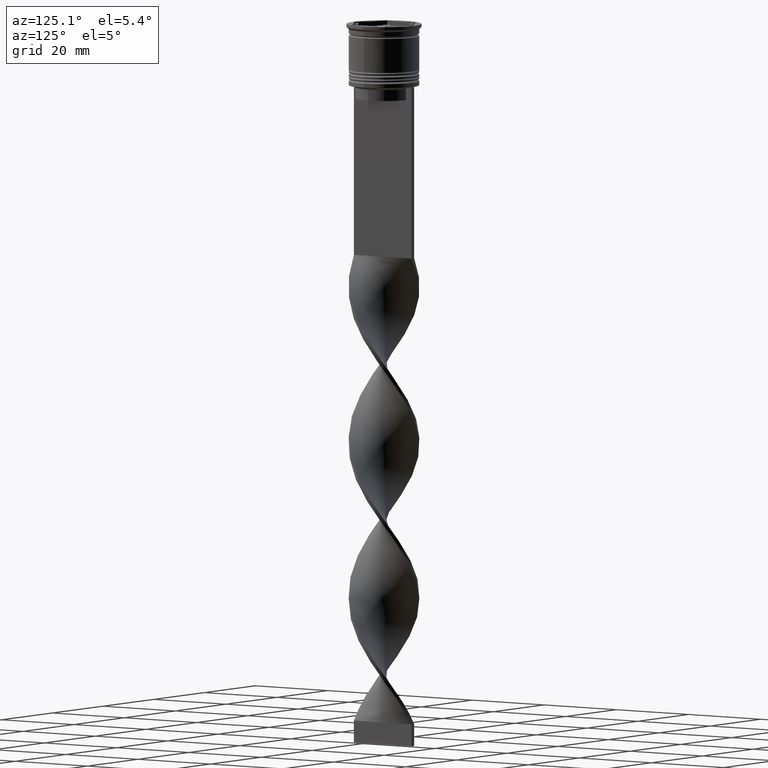
[diagram: clean part render]
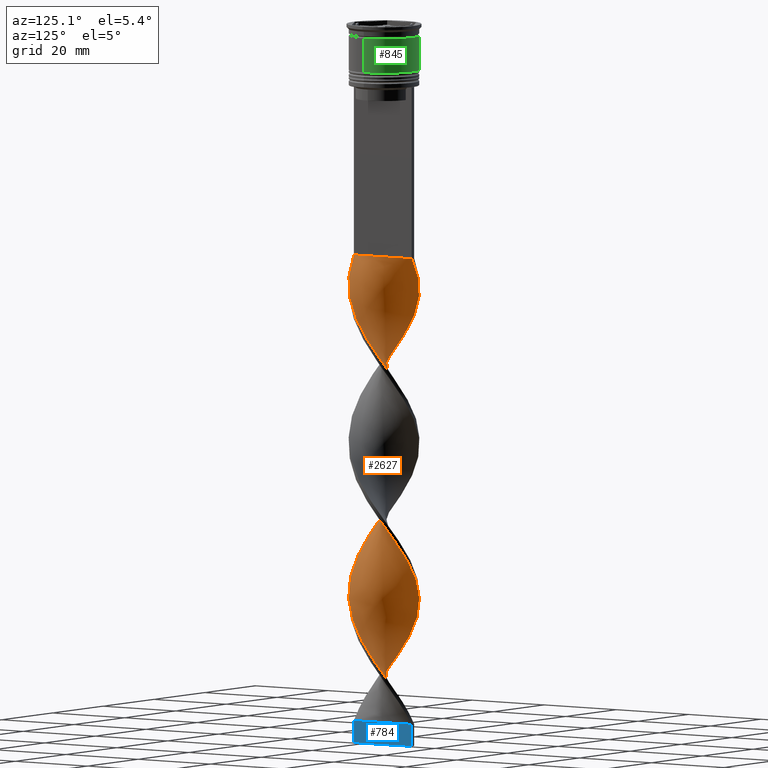
[diagram: same view with three faces highlighted in distinct colors, each labeled with its STEP entity id]
A machine part, auxiliary view with three faces highlighted in distinct colors.
Their STEP definitions:

[orange] entity #2627 — the highlighted face is a freeform B-spline surface patch.
#14 = CARTESIAN_POINT ( 'NONE',  ( -0.5000000000000011102, -7.999999999999996447, -88.33333333333332860 ) ) ;
#20 = CARTESIAN_POINT ( 'NONE',  ( 3.710665873427703154, -7.104995339602909965, -128.3777777777777942 ) ) ;
#39 = CARTESIAN_POINT ( 'NONE',  ( 8.008439394580017634, -0.3389667584570930092, -140.1555555555555657 ) ) ;
#52 = CARTESIAN_POINT ( 'NONE',  ( -1.174219726175170786, 7.929136651279321768, -126.0222222222222257 ) ) ;
#67 = CARTESIAN_POINT ( 'NONE',  ( -0.3408338821254111584, 8.052552117632835404, -124.8444444444444343 ) ) ;
#69 = CARTESIAN_POINT ( 'NONE',  ( 1.340833882125418208, 7.947447882367156602, -122.4888888888888800 ) ) ;
#93 = CARTESIAN_POINT ( 'NONE',  ( -3.586635261345267889, 7.217742780431601446, -129.5555555555555429 ) ) ;
#94 = CARTESIAN_POINT ( 'NONE',  ( -8.044066236508134793, -0.5027541397817568702, -106.0000000000000000 ) ) ;
#96 = CARTESIAN_POINT ( 'NONE',  ( 5.610593300639719949, -5.724617263609562912, -97.75555555555555998 ) ) ;
#98 = CARTESIAN_POINT ( 'NONE',  ( 3.710665873427703154, -7.104995339602909965, -128.3777777777777942 ) ) ;
#109 = CARTESIAN_POINT ( 'NONE',  ( -7.763755626116584097, 2.164223167868971398, -138.9777777777777885 ) ) ;
#110 = CARTESIAN_POINT ( 'NONE',  ( -7.144131640230917846, 3.731105258425341020, -136.6222222222222342 ) ) ;
#119 = CARTESIAN_POINT ( 'NONE',  ( -5.756150055891657402, 5.641498017056845171, -96.57777777777776862 ) ) ;
#126 = CARTESIAN_POINT ( 'NONE',  ( 2.152367326908981138, 7.721224960461560372, -121.3111111111111171 ) ) ;
#128 = CARTESIAN_POINT ( 'NONE',  ( 0.5000000000000001110, 7.999999999999996447, -123.6666666666666714 ) ) ;
#148 = CARTESIAN_POINT ( 'NONE',  ( 6.279723906998584404, -4.981472438132170666, -62.42222222222221717 ) ) ;
#161 = CARTESIAN_POINT ( 'NONE',  ( 5.610593300639729719, 5.724617263609562912, -149.5777777777777828 ) ) ;
#164 = CARTESIAN_POINT ( 'NONE',  ( -6.678203230275515878, -4.433012701892216079, -111.8888888888888999 ) ) ;
#170 = CARTESIAN_POINT ( 'NONE',  ( -3.710665873427702710, -7.104995339602902860, -154.2888888888888914 ) ) ;
#171 = CARTESIAN_POINT ( 'NONE',  ( -7.762960627548705084, 1.996607696852004565, -102.4666666666666686 ) ) ;
#183 = CARTESIAN_POINT ( 'NONE',  ( 6.212274820320101476, 5.134920145359098242, -148.4000000000000057 ) ) ;
#186 = CARTESIAN_POINT ( 'NONE',  ( 7.553108702445512357, -2.812527737008067241, -65.95555555555556282 ) ) ;
#202 = CARTESIAN_POINT ( 'NONE',  ( 6.678203230275513214, 4.433012701892219631, -76.55555555555555713 ) ) ;
#207 = CARTESIAN_POINT ( 'NONE',  ( -0.5000000000000004441, -2.666666666666663410, -159.0000000000000000 ) ) ;
#208 = CARTESIAN_POINT ( 'NONE',  ( 3.710665873427703154, -7.104995339602909965, -57.71111111111110858 ) ) ;
#210 = CARTESIAN_POINT ( 'NONE',  ( -0.4999999999999991673, 8.000000000000003553, -88.33333333333332860 ) ) ;
#228 = CARTESIAN_POINT ( 'NONE',  ( -5.610593300639721726, 5.724617263609561135, -62.42222222222221717 ) ) ;
#229 = CARTESIAN_POINT ( 'NONE',  ( 1.174219726175175671, 7.929136651279327097, -156.6444444444444457 ) ) ;
#232 = EDGE_LOOP ( 'NONE', ( #2827, #2107, #1892, #1599 ) ) ;
#256 = CARTESIAN_POINT ( 'NONE',  ( -7.553108702445506140, -2.812527737008062356, -75.37777777777777999 ) ) ;
#283 = CARTESIAN_POINT ( 'NONE',  ( -1.340833882125413545, -7.947447882367156602, -87.15555555555553724 ) ) ;
#306 = CARTESIAN_POINT ( 'NONE',  ( -3.710665873427702710, -7.104995339602902860, -83.62222222222222001 ) ) ;
#320 = CARTESIAN_POINT ( 'NONE',  ( -5.756150055891655626, -5.641498017056837178, -80.08888888888888857 ) ) ;
#326 = CARTESIAN_POINT ( 'NONE',  ( 0.5000000000000001110, -8.000000000000003553, -123.6666666666666714 ) ) ;
#343 = CARTESIAN_POINT ( 'NONE',  ( 6.212274820320095259, -5.134920145359096466, -98.93333333333332291 ) ) ;
#348 = CARTESIAN_POINT ( 'NONE',  ( -0.4999999999999991673, 8.000000000000003553, -159.0000000000000000 ) ) ;
#358 = CARTESIAN_POINT ( 'NONE',  ( 6.678203230275505220, -4.433012701892221408, -100.1111111111111143 ) ) ;
#371 = CARTESIAN_POINT ( 'NONE',  ( 7.762960627548699755, 1.996607696851999680, -109.5333333333333456 ) ) ;
#373 = CARTESIAN_POINT ( 'NONE',  ( -6.803297758105507853, -4.321446859207493496, -148.4000000000000057 ) ) ;
#378 = CARTESIAN_POINT ( 'NONE',  ( 2.152367326908978473, -7.721224960461570141, -126.0222222222222257 ) ) ;
#396 = CARTESIAN_POINT ( 'NONE',  ( -7.453943633173751415, 2.947664213147155543, -137.8000000000000114 ) ) ;
#398 = CARTESIAN_POINT ( 'NONE',  ( 6.803297758105508741, 4.321446859207492608, -113.0666666666666629 ) ) ;
#415 = CARTESIAN_POINT ( 'NONE',  ( -7.763755626116584985, 2.164223167868970954, -138.9777777777777885 ) ) ;
#427 = CARTESIAN_POINT ( 'NONE',  ( 5.008911780959356186, 6.314314381860030245, -80.08888888888888857 ) ) ;
#433 = CARTESIAN_POINT ( 'NONE',  ( -4.457430975162862019, -6.714988640649840690, -153.1111111111110858 ) ) ;
#439 = CARTESIAN_POINT ( 'NONE',  ( -7.144131640230925839, -3.731105258425339244, -110.7111111111110944 ) ) ;
#451 = CARTESIAN_POINT ( 'NONE',  ( -7.763755626116593866, -2.164223167868965625, -108.3555555555555543 ) ) ;
#457 = CARTESIAN_POINT ( 'NONE',  ( -5.756150055891655626, -5.641498017056837178, -150.7555555555555600 ) ) ;
#458 = CARTESIAN_POINT ( 'NONE',  ( -6.803297758105511406, 4.321446859207499713, -98.93333333333332291 ) ) ;
#469 = CARTESIAN_POINT ( 'NONE',  ( 8.008439394580017634, -0.3389667584570930092, -140.1555555555555657 ) ) ;
#471 = CARTESIAN_POINT ( 'NONE',  ( 7.903910931312363886, 1.333488653825363857, -71.84444444444444855 ) ) ;
#486 = CARTESIAN_POINT ( 'NONE',  ( 4.457430975162862907, -6.714988640649847795, -58.88888888888888573 ) ) ;
#489 = CARTESIAN_POINT ( 'NONE',  ( -7.553108702445507028, -2.812527737008061912, -146.0444444444443945 ) ) ;
#490 = CARTESIAN_POINT ( 'NONE',  ( 2.797120415785104619, 7.511731982678710118, -83.62222222222222001 ) ) ;
#507 = CARTESIAN_POINT ( 'NONE',  ( -5.106790515527258378, -6.178243328853339378, -81.26666666666666572 ) ) ;
#508 = CARTESIAN_POINT ( 'NONE',  ( 2.797120415785104619, 7.511731982678710118, -154.2888888888888914 ) ) ;
#533 = CARTESIAN_POINT ( 'NONE',  ( -0.3408338821254111584, 8.052552117632835404, -54.17777777777777715 ) ) ;
#542 = CARTESIAN_POINT ( 'NONE',  ( -5.610593300639721726, 5.724617263609561135, -62.42222222222221717 ) ) ;
#559 = CARTESIAN_POINT ( 'NONE',  ( 2.797120415785096625, -7.511731982678705677, -93.04444444444443718 ) ) ;
#564 = CARTESIAN_POINT ( 'NONE',  ( -4.297773521152309151, 6.766028581145814513, -60.06666666666666288 ) ) ;
#577 =( BOUNDED_CURVE ( )  B_SPLINE_CURVE ( 2, ( #3752, #3428, #2300, #1443, #2052, #3128, #1164, #2314, #542, #3459, #3182, #3718, #875, #2896, #3444, #1769, #2580, #1708, #2849, #256, #611, #2913, #3736, #320, #841, #596, #306, #2633, #2609, #1206, #14, #1421, #2559, #3145, #559, #1723, #990, #666, #96, #1528, #358, #1844, #3514, #3496, #3283, #2364, #2988, #1241, #708, #1583, #1865, #398, #1811, #3252, #931, #2706, #2422, #2650, #2954, #69, #128, #2090, #2970, #3573, #972, #683, #1565, #3233, #909, #3008, #650, #110, #2386, #415, #2726, #1296, #1276, #2668, #1825, #3535, #2142, #373, #955, #2068, #2109, #3209, #628, #1791, #1543, #2937, #2685 ),
 .UNSPECIFIED., .F., .T. ) 
 B_SPLINE_CURVE_WITH_KNOTS ( ( 3, 2, 2, 2, 2, 2, 2, 2, 2, 2, 2, 2, 2, 2, 2, 2, 2, 2, 2, 2, 2, 2, 2, 2, 2, 2, 2, 2, 2, 2, 2, 2, 2, 2, 2, 2, 2, 2, 2, 2, 2, 2, 2, 2, 2, 3 ),
 ( 0.000000000000000000, 0.01666666666666666644, 0.03333333333333333287, 0.05000000000000000971, 0.06666666666666666574, 0.08333333333333332871, 0.1000000000000000194, 0.1166666666666666546, 0.1333333333333333315, 0.1499999999999999944, 0.1666666666666666574, 0.1833333333333333204, 0.2000000000000000389, 0.2166666666666666741, 0.2333333333333333093, 0.2500000000000000000, 0.2666666666666666630, 0.2833333333333333259, 0.2999999999999999889, 0.3166666666666666519, 0.3333333333333333148, 0.3499999999999999223, 0.3666666666666666408, 0.3833333333333333592, 0.4000000000000000777, 0.4166666666666666852, 0.4333333333333333481, 0.4500000000000000111, 0.4666666666666666186, 0.4833333333333333370, 0.5000000000000000000, 0.5166666666666667185, 0.5333333333333333259, 0.5500000000000000444, 0.5666666666666666519, 0.5833333333333333703, 0.5999999999999999778, 0.6166666666666666963, 0.6333333333333333037, 0.6500000000000000222, 0.6666666666666666297, 0.6833333333333332371, 0.6999999999999998446, 0.7166666666666666741, 0.7333333333333332815, 0.7500000000000000000 ),
 .UNSPECIFIED. ) 
 CURVE ( )  GEOMETRIC_REPRESENTATION_ITEM ( )  RATIONAL_B_SPLINE_CURVE ( ( 1.000000000000000000, 0.9945218953682732899, 1.000000000000000000, 0.9945218953682732899, 1.000000000000000000, 0.9945218953682732899, 1.000000000000000000, 0.9945218953682732899, 1.000000000000000000, 0.9945218953682732899, 1.000000000000000000, 0.9945218953682732899, 1.000000000000000000, 0.9945218953682732899, 1.000000000000000000, 0.9945218953682732899, 1.000000000000000000, 0.9945218953682732899, 1.000000000000000000, 0.9945218953682732899, 1.000000000000000000, 0.9945218953682732899, 1.000000000000000000, 0.9945218953682732899, 1.000000000000000000, 0.9945218953682732899, 1.000000000000000000, 0.9945218953682732899, 1.000000000000000000, 0.9945218953682732899, 1.000000000000000000, 0.9945218953682732899, 1.000000000000000000, 0.9945218953682732899, 1.000000000000000000, 0.9945218953682732899, 1.000000000000000000, 0.9945218953682732899, 1.000000000000000000, 0.9945218953682732899, 1.000000000000000000, 0.9945218953682732899, 1.000000000000000000, 0.9945218953682732899, 1.000000000000000000, 0.9945218953682732899, 1.000000000000000000, 0.9945218953682732899, 1.000000000000000000, 0.9945218953682732899, 1.000000000000000000, 0.9945218953682732899, 1.000000000000000000, 0.9945218953682732899, 1.000000000000000000, 0.9945218953682732899, 1.000000000000000000, 0.9945218953682732899, 1.000000000000000000, 0.9945218953682732899, 1.000000000000000000, 0.9945218953682732899, 1.000000000000000000, 0.9945218953682732899, 1.000000000000000000, 0.9945218953682732899, 1.000000000000000000, 0.9945218953682732899, 1.000000000000000000, 0.9945218953682732899, 1.000000000000000000, 0.9945218953682732899, 1.000000000000000000, 0.9945218953682732899, 1.000000000000000000, 0.9945218953682732899, 1.000000000000000000, 0.9945218953682732899, 1.000000000000000000, 0.9945218953682732899, 1.000000000000000000, 0.9945218953682732899, 1.000000000000000000, 0.9945218953682732899, 1.000000000000000000, 0.9945218953682732899, 1.000000000000000000, 0.9945218953682732899, 1.000000000000000000, 0.9945218953682732899, 1.000000000000000000 ) ) 
 REPRESENTATION_ITEM ( '' )  );
#596 = CARTESIAN_POINT ( 'NONE',  ( -4.457430975162862019, -6.714988640649840690, -82.44444444444444287 ) ) ;
#600 = CARTESIAN_POINT ( 'NONE',  ( 5.756150055891658290, -5.641498017056844283, -131.9111111111111256 ) ) ;
#611 = CARTESIAN_POINT ( 'NONE',  ( -7.178203230275506996, -3.566987298107776816, -76.55555555555555713 ) ) ;
#615 = CARTESIAN_POINT ( 'NONE',  ( -2.007605570224935132, -7.805721184925815237, -120.1333333333333400 ) ) ;
#628 = CARTESIAN_POINT ( 'NONE',  ( -3.710665873427702710, -7.104995339602902860, -154.2888888888888914 ) ) ;
#648 = CARTESIAN_POINT ( 'NONE',  ( 1.340833882125418208, 7.947447882367156602, -122.4888888888888800 ) ) ;
#650 = CARTESIAN_POINT ( 'NONE',  ( -6.678203230275506108, 4.433012701892218743, -135.4444444444444571 ) ) ;
#666 = CARTESIAN_POINT ( 'NONE',  ( 5.008911780959347304, -6.314314381860026693, -96.57777777777776862 ) ) ;
#683 = CARTESIAN_POINT ( 'NONE',  ( -3.586635261345268333, 7.217742780431601446, -129.5555555555555429 ) ) ;
#686 = CARTESIAN_POINT ( 'NONE',  ( 5.756150055891659179, -5.641498017056845171, -131.9111111111111256 ) ) ;
#699 = CARTESIAN_POINT ( 'NONE',  ( 6.212274820320101476, 5.134920145359099131, -77.73333333333333428 ) ) ;
#706 = CARTESIAN_POINT ( 'NONE',  ( 6.279723906998583516, 4.981472438132163560, -114.2444444444444542 ) ) ;
#708 = CARTESIAN_POINT ( 'NONE',  ( 7.762960627548699755, 1.996607696851999680, -109.5333333333333456 ) ) ;
#723 = CARTESIAN_POINT ( 'NONE',  ( -6.678203230275506108, 4.433012701892218743, -135.4444444444444571 ) ) ;
#736 = CARTESIAN_POINT ( 'NONE',  ( -7.903910931312363886, -1.333488653825361192, -107.1777777777777771 ) ) ;
#742 = CARTESIAN_POINT ( 'NONE',  ( -2.963900771692543845, 7.495002038555972135, -91.86666666666666003 ) ) ;
#757 = CARTESIAN_POINT ( 'NONE',  ( 2.007605570224934244, 7.805721184925815237, -155.4666666666666686 ) ) ;
#778 = CARTESIAN_POINT ( 'NONE',  ( 6.803297758105513182, -4.321446859207498825, -63.60000000000000142 ) ) ;
#795 = CARTESIAN_POINT ( 'NONE',  ( -1.174219726175170786, 7.929136651279321768, -55.35555555555555429 ) ) ;
#796 = CARTESIAN_POINT ( 'NONE',  ( 7.453943633173759409, 2.947664213147156431, -144.8666666666666742 ) ) ;
#801 = CARTESIAN_POINT ( 'NONE',  ( -1.340833882125409104, 7.947447882367164596, -89.51111111111111995 ) ) ;
#814 = CARTESIAN_POINT ( 'NONE',  ( -4.457430975162862019, -6.714988640649840690, -82.44444444444444287 ) ) ;
#821 = CARTESIAN_POINT ( 'NONE',  ( -5.106790515527260155, 6.178243328853345595, -95.40000000000000568 ) ) ;
#841 = CARTESIAN_POINT ( 'NONE',  ( -5.106790515527258378, -6.178243328853339378, -81.26666666666666572 ) ) ;
#848 = CARTESIAN_POINT ( 'NONE',  ( -3.710665873427702710, -7.104995339602902860, -83.62222222222222001 ) ) ;
#852 = VERTEX_POINT ( 'NONE', #1509 ) ;
#875 = CARTESIAN_POINT ( 'NONE',  ( -7.453943633173751415, 2.947664213147155543, -67.13333333333333997 ) ) ;
#876 = VECTOR ( 'NONE', #2340, 1000.000000000000000 ) ;
#880 = CARTESIAN_POINT ( 'NONE',  ( -0.3408338821254187634, -8.052552117632842510, -122.4888888888888800 ) ) ;
#897 = CARTESIAN_POINT ( 'NONE',  ( 7.763755626116592090, 2.164223167868970066, -143.6888888888888971 ) ) ;
#909 = CARTESIAN_POINT ( 'NONE',  ( -5.610593300639721726, 5.724617263609561135, -133.0888888888889028 ) ) ;
#928 = CARTESIAN_POINT ( 'NONE',  ( 7.453943633173751415, -2.947664213147155987, -102.4666666666666686 ) ) ;
#931 = CARTESIAN_POINT ( 'NONE',  ( 5.106790515527259267, 6.178243328853339378, -116.6000000000000085 ) ) ;
#953 = CARTESIAN_POINT ( 'NONE',  ( 6.803297758105507853, 4.321446859207492608, -113.0666666666666487 ) ) ;
#955 = CARTESIAN_POINT ( 'NONE',  ( -6.279723906998582628, -4.981472438132164449, -149.5777777777777828 ) ) ;
#957 = CARTESIAN_POINT ( 'NONE',  ( -0.3408338821254187079, -8.052552117632842510, -122.4888888888888800 ) ) ;
#970 = CARTESIAN_POINT ( 'NONE',  ( -7.144131640230917846, 3.731105258425341020, -136.6222222222222342 ) ) ;
#972 = CARTESIAN_POINT ( 'NONE',  ( -2.797120415785099734, 7.511731982678703901, -128.3777777777777942 ) ) ;
#975 = CARTESIAN_POINT ( 'NONE',  ( 4.457430975162862907, -6.714988640649848683, -129.5555555555555429 ) ) ;
#990 = CARTESIAN_POINT ( 'NONE',  ( 4.297773521152308263, -6.766028581145814513, -95.40000000000000568 ) ) ;
#994 = CARTESIAN_POINT ( 'NONE',  ( 1.340833882125412213, -7.947447882367162819, -124.8444444444444343 ) ) ;
#1006 = CARTESIAN_POINT ( 'NONE',  ( 3.586635261345274106, 7.217742780431604999, -82.44444444444444287 ) ) ;
#1012 = CARTESIAN_POINT ( 'NONE',  ( -2.007605570224930691, 7.805721184925808132, -127.2000000000000171 ) ) ;
#1023 = CARTESIAN_POINT ( 'NONE',  ( 7.903910931312363886, 1.333488653825363857, -142.5111111111111200 ) ) ;
#1026 = CARTESIAN_POINT ( 'NONE',  ( -7.972812552651897811, 1.180687656695944776, -103.6444444444444457 ) ) ;
#1031 = CARTESIAN_POINT ( 'NONE',  ( 7.972812552651896922, -1.180687656695942334, -68.31111111111111711 ) ) ;
#1044 = CARTESIAN_POINT ( 'NONE',  ( 3.586635261345274106, 7.217742780431604999, -153.1111111111110858 ) ) ;
#1046 = CARTESIAN_POINT ( 'NONE',  ( 7.453943633173759409, 2.947664213147156431, -74.20000000000000284 ) ) ;
#1050 = CARTESIAN_POINT ( 'NONE',  ( 5.106790515527261043, -6.178243328853345595, -60.06666666666666288 ) ) ;
#1060 = EDGE_CURVE ( 'NONE', #2875, #852, #1502, .T. ) ;
#1063 = CARTESIAN_POINT ( 'NONE',  ( 2.007605570224934244, 7.805721184925815237, -84.79999999999998295 ) ) ;
#1069 = CARTESIAN_POINT ( 'NONE',  ( 7.903910931312363886, 1.333488653825363857, -71.84444444444444855 ) ) ;
#1082 = CARTESIAN_POINT ( 'NONE',  ( 2.963900771692544289, -7.495002038555971247, -56.53333333333332433 ) ) ;
#1096 = CARTESIAN_POINT ( 'NONE',  ( -6.803297758105507853, -4.321446859207493496, -77.73333333333333428 ) ) ;
#1101 = CARTESIAN_POINT ( 'NONE',  ( -2.152367326908976253, 7.721224960461570141, -90.68888888888888289 ) ) ;
#1117 = CARTESIAN_POINT ( 'NONE',  ( -6.212274820320096147, 5.134920145359095578, -63.60000000000000853 ) ) ;
#1139 = CARTESIAN_POINT ( 'NONE',  ( -6.279723906998582628, -4.981472438132164449, -78.91111111111111143 ) ) ;
#1164 = CARTESIAN_POINT ( 'NONE',  ( -4.297773521152309151, 6.766028581145814513, -60.06666666666666288 ) ) ;
#1190 = CARTESIAN_POINT ( 'NONE',  ( 6.279723906998584404, -4.981472438132170666, -133.0888888888889028 ) ) ;
#1206 = CARTESIAN_POINT ( 'NONE',  ( -1.340833882125413545, -7.947447882367156602, -87.15555555555553724 ) ) ;
#1210 = CARTESIAN_POINT ( 'NONE',  ( -2.797120415785108172, -7.511731982678708341, -118.9555555555555628 ) ) ;
#1241 = CARTESIAN_POINT ( 'NONE',  ( 7.972812552651892481, 1.180687656695933230, -108.3555555555555543 ) ) ;
#1259 = CARTESIAN_POINT ( 'NONE',  ( -5.008911780959349080, 6.314314381860025804, -131.9111111111111256 ) ) ;
#1275 = CARTESIAN_POINT ( 'NONE',  ( 1.174219726175168788, -7.929136651279321768, -90.68888888888888289 ) ) ;
#1276 = CARTESIAN_POINT ( 'NONE',  ( -8.008439394580010529, -0.3389667584570894565, -142.5111111111111200 ) ) ;
#1287 = CARTESIAN_POINT ( 'NONE',  ( 4.297773521152314480, 6.766028581145818066, -81.26666666666666572 ) ) ;
#1292 = CARTESIAN_POINT ( 'NONE',  ( -2.797120415785099734, 7.511731982678703901, -128.3777777777777942 ) ) ;
#1296 = CARTESIAN_POINT ( 'NONE',  ( -8.044066236508127687, 0.5027541397817588686, -141.3333333333333428 ) ) ;
#1300 = CARTESIAN_POINT ( 'NONE',  ( -6.678203230275515878, -4.433012701892216079, -111.8888888888888999 ) ) ;
#1306 = VERTEX_POINT ( 'NONE', #3124 ) ;
#1312 = CARTESIAN_POINT ( 'NONE',  ( -7.762960627548705084, 1.996607696852004565, -102.4666666666666686 ) ) ;
#1325 = CARTESIAN_POINT ( 'NONE',  ( -2.797120415785108172, -7.511731982678708341, -118.9555555555555628 ) ) ;
#1334 = CARTESIAN_POINT ( 'NONE',  ( -6.212274820320102364, -5.134920145359098242, -113.0666666666666629 ) ) ;
#1339 = CARTESIAN_POINT ( 'NONE',  ( -1.340833882125413545, -7.947447882367156602, -157.8222222222221660 ) ) ;
#1340 = CARTESIAN_POINT ( 'NONE',  ( -7.972812552651896922, 1.180687656695944776, -103.6444444444444457 ) ) ;
#1350 = CARTESIAN_POINT ( 'NONE',  ( 4.297773521152314480, 6.766028581145818066, -151.9333333333333371 ) ) ;
#1353 = CARTESIAN_POINT ( 'NONE',  ( 7.763755626116592090, 2.164223167868970066, -73.02222222222221149 ) ) ;
#1357 = CARTESIAN_POINT ( 'NONE',  ( 7.553108702445513245, -2.812527737008067685, -65.95555555555556282 ) ) ;
#1375 = CARTESIAN_POINT ( 'NONE',  ( -2.152367326908976253, 7.721224960461570141, -90.68888888888888289 ) ) ;
#1381 = CARTESIAN_POINT ( 'NONE',  ( 4.457430975162862907, -6.714988640649848683, -58.88888888888889284 ) ) ;
#1410 = CARTESIAN_POINT ( 'NONE',  ( -2.007605570224930691, 7.805721184925808132, -56.53333333333331723 ) ) ;
#1413 = CARTESIAN_POINT ( 'NONE',  ( -0.5000000000000011102, -7.999999999999996447, -159.0000000000000000 ) ) ;
#1421 = CARTESIAN_POINT ( 'NONE',  ( 0.3408338821254078277, -8.052552117632837181, -89.51111111111110574 ) ) ;
#1429 = CARTESIAN_POINT ( 'NONE',  ( -7.553108702445507028, -2.812527737008061912, -75.37777777777777999 ) ) ;
#1443 = CARTESIAN_POINT ( 'NONE',  ( -2.007605570224930691, 7.805721184925808132, -56.53333333333332433 ) ) ;
#1498 = CARTESIAN_POINT ( 'NONE',  ( 5.610593300639729719, 5.724617263609562912, -149.5777777777777828 ) ) ;
#1502 =( BOUNDED_CURVE ( )  B_SPLINE_CURVE ( 2, ( #3589, #1878, #2432, #1082, #3277, #486, #1897, #3362, #3651, #778, #3019, #186, #1932, #1919, #3060, #3037, #471, #1353, #1046, #2197, #202, #699, #3076, #427, #1287, #1006, #2779, #1063, #1858, #3002, #2453, #1656, #1375, #2735, #2514, #3672, #1578, #119, #2157, #3612, #3298, #1595, #1312, #1026, #2177, #3317, #736, #451, #1619, #2760, #164, #1334, #2236, #1698, #2319, #3465, #1210, #615, #1677, #880, #326, #3483, #2917, #2612, #20, #1797, #3501, #600, #1190, #1946, #1758, #3688, #3706, #2838, #39, #3379, #2337, #897, #796, #2900, #2056, #1773, #1498, #2820, #2548, #2636, #508, #3397, #229, #3094, #348 ),
 .UNSPECIFIED., .F., .T. ) 
 B_SPLINE_CURVE_WITH_KNOTS ( ( 3, 2, 2, 2, 2, 2, 2, 2, 2, 2, 2, 2, 2, 2, 2, 2, 2, 2, 2, 2, 2, 2, 2, 2, 2, 2, 2, 2, 2, 2, 2, 2, 2, 2, 2, 2, 2, 2, 2, 2, 2, 2, 2, 2, 2, 3 ),
 ( 0.000000000000000000, 0.01666666666666666644, 0.03333333333333333287, 0.05000000000000000971, 0.06666666666666666574, 0.08333333333333332871, 0.1000000000000000194, 0.1166666666666666546, 0.1333333333333333315, 0.1499999999999999944, 0.1666666666666666574, 0.1833333333333333204, 0.2000000000000000389, 0.2166666666666666741, 0.2333333333333333093, 0.2500000000000000000, 0.2666666666666666630, 0.2833333333333333259, 0.2999999999999999889, 0.3166666666666666519, 0.3333333333333333148, 0.3499999999999999223, 0.3666666666666666408, 0.3833333333333333592, 0.4000000000000000777, 0.4166666666666666852, 0.4333333333333333481, 0.4500000000000000111, 0.4666666666666666186, 0.4833333333333333370, 0.5000000000000000000, 0.5166666666666667185, 0.5333333333333333259, 0.5500000000000000444, 0.5666666666666666519, 0.5833333333333333703, 0.5999999999999999778, 0.6166666666666666963, 0.6333333333333333037, 0.6500000000000000222, 0.6666666666666666297, 0.6833333333333332371, 0.6999999999999998446, 0.7166666666666666741, 0.7333333333333332815, 0.7500000000000000000 ),
 .UNSPECIFIED. ) 
 CURVE ( )  GEOMETRIC_REPRESENTATION_ITEM ( )  RATIONAL_B_SPLINE_CURVE ( ( 1.000000000000000000, 0.9945218953682732899, 1.000000000000000000, 0.9945218953682732899, 1.000000000000000000, 0.9945218953682732899, 1.000000000000000000, 0.9945218953682732899, 1.000000000000000000, 0.9945218953682732899, 1.000000000000000000, 0.9945218953682732899, 1.000000000000000000, 0.9945218953682732899, 1.000000000000000000, 0.9945218953682732899, 1.000000000000000000, 0.9945218953682732899, 1.000000000000000000, 0.9945218953682732899, 1.000000000000000000, 0.9945218953682732899, 1.000000000000000000, 0.9945218953682732899, 1.000000000000000000, 0.9945218953682732899, 1.000000000000000000, 0.9945218953682732899, 1.000000000000000000, 0.9945218953682732899, 1.000000000000000000, 0.9945218953682732899, 1.000000000000000000, 0.9945218953682732899, 1.000000000000000000, 0.9945218953682732899, 1.000000000000000000, 0.9945218953682732899, 1.000000000000000000, 0.9945218953682732899, 1.000000000000000000, 0.9945218953682732899, 1.000000000000000000, 0.9945218953682732899, 1.000000000000000000, 0.9945218953682732899, 1.000000000000000000, 0.9945218953682732899, 1.000000000000000000, 0.9945218953682732899, 1.000000000000000000, 0.9945218953682732899, 1.000000000000000000, 0.9945218953682732899, 1.000000000000000000, 0.9945218953682732899, 1.000000000000000000, 0.9945218953682732899, 1.000000000000000000, 0.9945218953682732899, 1.000000000000000000, 0.9945218953682732899, 1.000000000000000000, 0.9945218953682732899, 1.000000000000000000, 0.9945218953682732899, 1.000000000000000000, 0.9945218953682732899, 1.000000000000000000, 0.9945218953682732899, 1.000000000000000000, 0.9945218953682732899, 1.000000000000000000, 0.9945218953682732899, 1.000000000000000000, 0.9945218953682732899, 1.000000000000000000, 0.9945218953682732899, 1.000000000000000000, 0.9945218953682732899, 1.000000000000000000, 0.9945218953682732899, 1.000000000000000000, 0.9945218953682732899, 1.000000000000000000, 0.9945218953682732899, 1.000000000000000000, 0.9945218953682732899, 1.000000000000000000, 0.9945218953682732899, 1.000000000000000000 ) ) 
 REPRESENTATION_ITEM ( '' )  );
#1509 = CARTESIAN_POINT ( 'NONE',  ( -0.4999999999999991673, 8.000000000000003553, -159.0000000000000000 ) ) ;
#1513 = CARTESIAN_POINT ( 'NONE',  ( 8.008439394580010529, 0.3389667584570867365, -107.1777777777777771 ) ) ;
#1527 = CARTESIAN_POINT ( 'NONE',  ( 0.5000000000000001110, 7.999999999999996447, -123.6666666666666714 ) ) ;
#1528 = CARTESIAN_POINT ( 'NONE',  ( 6.212274820320095259, -5.134920145359096466, -98.93333333333332291 ) ) ;
#1541 = CARTESIAN_POINT ( 'NONE',  ( 2.963900771692544289, 7.495002038555964141, -120.1333333333333400 ) ) ;
#1543 = CARTESIAN_POINT ( 'NONE',  ( -2.152367326908979805, -7.721224960461560372, -156.6444444444444457 ) ) ;
#1547 = CARTESIAN_POINT ( 'NONE',  ( -5.610593300639730607, -5.724617263609562023, -114.2444444444444542 ) ) ;
#1564 = CARTESIAN_POINT ( 'NONE',  ( -7.903910931312356780, 1.333488653825365855, -140.1555555555555657 ) ) ;
#1565 = CARTESIAN_POINT ( 'NONE',  ( -4.297773521152309151, 6.766028581145814513, -130.7333333333333485 ) ) ;
#1578 = CARTESIAN_POINT ( 'NONE',  ( -5.106790515527260155, 6.178243328853345595, -95.40000000000000568 ) ) ;
#1583 = CARTESIAN_POINT ( 'NONE',  ( 7.553108702445507028, 2.812527737008059248, -110.7111111111111086 ) ) ;
#1595 = CARTESIAN_POINT ( 'NONE',  ( -7.553108702445509692, 2.812527737008071682, -101.2888888888888914 ) ) ;
#1599 = ORIENTED_EDGE ( 'NONE', *, *, #3084, .F. ) ;
#1613 = CARTESIAN_POINT ( 'NONE',  ( -0.4999999999999991673, 8.000000000000003553, -159.0000000000000000 ) ) ;
#1615 = CARTESIAN_POINT ( 'NONE',  ( 7.453943633173759409, 2.947664213147156431, -144.8666666666666742 ) ) ;
#1619 = CARTESIAN_POINT ( 'NONE',  ( -7.453943633173759409, -2.947664213147155543, -109.5333333333333456 ) ) ;
#1625 = CARTESIAN_POINT ( 'NONE',  ( 2.963900771692544289, -7.495002038555971247, -56.53333333333331723 ) ) ;
#1627 = CARTESIAN_POINT ( 'NONE',  ( -6.279723906998584404, 4.981472438132172442, -97.75555555555555998 ) ) ;
#1637 = CARTESIAN_POINT ( 'NONE',  ( 0.3408338821254142115, 8.052552117632842510, -157.8222222222221660 ) ) ;
#1643 = CARTESIAN_POINT ( 'NONE',  ( -6.279723906998582628, -4.981472438132164449, -149.5777777777777828 ) ) ;
#1644 = CARTESIAN_POINT ( 'NONE',  ( 7.453943633173759409, 2.947664213147156431, -74.20000000000000284 ) ) ;
#1656 = CARTESIAN_POINT ( 'NONE',  ( -1.340833882125409104, 7.947447882367165484, -89.51111111111110574 ) ) ;
#1661 = CARTESIAN_POINT ( 'NONE',  ( 1.174219726175175671, 7.929136651279327097, -85.97777777777777430 ) ) ;
#1677 = CARTESIAN_POINT ( 'NONE',  ( -1.174219726175176559, -7.929136651279327097, -121.3111111111111171 ) ) ;
#1683 = CARTESIAN_POINT ( 'NONE',  ( 6.678203230275513214, 4.433012701892219631, -76.55555555555555713 ) ) ;
#1698 = CARTESIAN_POINT ( 'NONE',  ( -5.008911780959359739, -6.314314381860026693, -115.4222222222222314 ) ) ;
#1702 = CARTESIAN_POINT ( 'NONE',  ( -0.4999999999999997780, 2.666666666666670515, -159.0000000000000000 ) ) ;
#1708 = CARTESIAN_POINT ( 'NONE',  ( -7.972812552651890705, -1.180687656695938115, -73.02222222222221149 ) ) ;
#1723 = CARTESIAN_POINT ( 'NONE',  ( 3.586635261345266557, -7.217742780431602334, -94.22222222222221433 ) ) ;
#1730 = CARTESIAN_POINT ( 'NONE',  ( -2.963900771692543401, -7.495002038555964141, -84.79999999999998295 ) ) ;
#1758 = CARTESIAN_POINT ( 'NONE',  ( 7.178203230275512325, -3.566987298107783477, -135.4444444444444571 ) ) ;
#1769 = CARTESIAN_POINT ( 'NONE',  ( -8.044066236508127687, 0.5027541397817588686, -70.66666666666667140 ) ) ;
#1773 = CARTESIAN_POINT ( 'NONE',  ( 6.212274820320101476, 5.134920145359099131, -148.4000000000000057 ) ) ;
#1775 = EDGE_CURVE ( 'NONE', #1306, #852, #2848, .T. ) ;
#1791 = CARTESIAN_POINT ( 'NONE',  ( -2.963900771692543401, -7.495002038555965029, -155.4666666666666686 ) ) ;
#1797 = CARTESIAN_POINT ( 'NONE',  ( 4.457430975162862907, -6.714988640649847795, -129.5555555555555429 ) ) ;
#1811 = CARTESIAN_POINT ( 'NONE',  ( 6.279723906998583516, 4.981472438132163560, -114.2444444444444542 ) ) ;
#1825 = CARTESIAN_POINT ( 'NONE',  ( -7.762960627548699755, -1.996607696852000569, -144.8666666666666742 ) ) ;
#1827 = CARTESIAN_POINT ( 'NONE',  ( -6.212274820320102364, -5.134920145359098242, -113.0666666666666487 ) ) ;
#1840 = CARTESIAN_POINT ( 'NONE',  ( 8.044066236508127687, -0.5027541397817598678, -106.0000000000000000 ) ) ;
#1844 = CARTESIAN_POINT ( 'NONE',  ( 7.144131640230915181, -3.731105258425345461, -101.2888888888888914 ) ) ;
#1848 = CARTESIAN_POINT ( 'NONE',  ( 6.279723906998584404, -4.981472438132170666, -133.0888888888889028 ) ) ;
#1858 = CARTESIAN_POINT ( 'NONE',  ( 1.174219726175175671, 7.929136651279327097, -85.97777777777777430 ) ) ;
#1863 = CARTESIAN_POINT ( 'NONE',  ( 5.106790515527259267, 6.178243328853339378, -116.6000000000000085 ) ) ;
#1865 = CARTESIAN_POINT ( 'NONE',  ( 7.178203230275508773, 3.566987298107773263, -111.8888888888888999 ) ) ;
#1868 = CARTESIAN_POINT ( 'NONE',  ( 7.178203230275512325, -3.566987298107783477, -135.4444444444444571 ) ) ;
#1878 = CARTESIAN_POINT ( 'NONE',  ( 1.340833882125412213, -7.947447882367163707, -54.17777777777777715 ) ) ;
#1882 = CARTESIAN_POINT ( 'NONE',  ( -7.762960627548699755, -1.996607696852000569, -144.8666666666666742 ) ) ;
#1883 =( BOUNDED_SURFACE ( )  B_SPLINE_SURFACE ( 1, 2, ( 
 ( #2235, #533, #795, #1410, #3705, #2547, #564, #3728, #228, #1117, #2290, #2271, #3420, #3134, #2569, #2530, #3118, #3093, #2870, #1429, #3687, #1096, #1139, #3436, #507, #814, #848, #1730, #2250, #283, #1968, #2163, #1275, #3570, #3511, #3250, #2139, #2362, #2384, #343, #2723, #2665, #928, #2089, #3265, #1840, #1513, #2647, #371, #2986, #3282, #953, #706, #3304, #1863, #3006, #3230, #1541, #126, #648, #1527, #67, #52, #1012, #1292, #93, #2437, #1259, #3553, #3596, #723, #970, #396, #109, #1564, #2704, #3045, #2767, #1882, #489, #1924, #3024, #1643, #457, #2182, #433, #170, #2201, #2741, #1339, #2800 ),
 ( #1937, #3638, #3064, #1625, #208, #1381, #1050, #2784, #148, #3618, #3079, #1357, #2493, #1031, #3323, #2222, #1069, #3367, #1644, #2494, #1683, #2476, #3657, #1938, #3080, #2535, #490, #2183, #1661, #3324, #210, #801, #1101, #742, #3384, #1952, #821, #3099, #1627, #458, #3401, #2768, #171, #1340, #2103, #94, #3537, #3557, #1887, #439, #1300, #1827, #1547, #2973, #2464, #2671, #1325, #3576, #2748, #957, #2111, #994, #378, #2689, #98, #975, #2128, #686, #1848, #2992, #1868, #3011, #3632, #2487, #469, #1894, #1023, #3315, #1615, #2757, #2777, #183, #161, #3338, #1350, #1044, #2193, #757, #1915, #1637, #1613 ) ),
 .UNSPECIFIED., .F., .F., .F. ) 
 B_SPLINE_SURFACE_WITH_KNOTS ( ( 2, 2 ),
 ( 3, 2, 2, 2, 2, 2, 2, 2, 2, 2, 2, 2, 2, 2, 2, 2, 2, 2, 2, 2, 2, 2, 2, 2, 2, 2, 2, 2, 2, 2, 2, 2, 2, 2, 2, 2, 2, 2, 2, 2, 2, 2, 2, 2, 2, 3 ),
 ( 0.000000000000000000, 1.000000000000000000 ),
 ( 0.000000000000000000, 0.01666666666666666644, 0.03333333333333333287, 0.05000000000000000278, 0.06666666666666666574, 0.08333333333333332871, 0.1000000000000000056, 0.1166666666666666685, 0.1333333333333333315, 0.1499999999999999944, 0.1666666666666666574, 0.1833333333333333204, 0.2000000000000000111, 0.2166666666666666741, 0.2333333333333333370, 0.2500000000000000000, 0.2666666666666666630, 0.2833333333333333259, 0.2999999999999999889, 0.3166666666666666519, 0.3333333333333333148, 0.3499999999999999778, 0.3666666666666666408, 0.3833333333333333592, 0.4000000000000000222, 0.4166666666666666852, 0.4333333333333333481, 0.4500000000000000111, 0.4666666666666666741, 0.4833333333333333370, 0.5000000000000000000, 0.5166666666666667185, 0.5333333333333333259, 0.5500000000000000444, 0.5666666666666666519, 0.5833333333333333703, 0.5999999999999999778, 0.6166666666666666963, 0.6333333333333333037, 0.6500000000000000222, 0.6666666666666666297, 0.6833333333333333481, 0.6999999999999999556, 0.7166666666666666741, 0.7333333333333332815, 0.7500000000000000000 ),
 .UNSPECIFIED. ) 
 GEOMETRIC_REPRESENTATION_ITEM ( )  RATIONAL_B_SPLINE_SURFACE ( (
 ( 1.000000000000000000, 0.9945218953682732899, 1.000000000000000000, 0.9945218953682732899, 1.000000000000000000, 0.9945218953682732899, 1.000000000000000000, 0.9945218953682732899, 1.000000000000000000, 0.9945218953682732899, 1.000000000000000000, 0.9945218953682732899, 1.000000000000000000, 0.9945218953682732899, 1.000000000000000000, 0.9945218953682732899, 1.000000000000000000, 0.9945218953682732899, 1.000000000000000000, 0.9945218953682732899, 1.000000000000000000, 0.9945218953682732899, 1.000000000000000000, 0.9945218953682732899, 1.000000000000000000, 0.9945218953682732899, 1.000000000000000000, 0.9945218953682732899, 1.000000000000000000, 0.9945218953682732899, 1.000000000000000000, 0.9945218953682732899, 1.000000000000000000, 0.9945218953682732899, 1.000000000000000000, 0.9945218953682732899, 1.000000000000000000, 0.9945218953682732899, 1.000000000000000000, 0.9945218953682732899, 1.000000000000000000, 0.9945218953682732899, 1.000000000000000000, 0.9945218953682732899, 1.000000000000000000, 0.9945218953682732899, 1.000000000000000000, 0.9945218953682732899, 1.000000000000000000, 0.9945218953682732899, 1.000000000000000000, 0.9945218953682732899, 1.000000000000000000, 0.9945218953682732899, 1.000000000000000000, 0.9945218953682732899, 1.000000000000000000, 0.9945218953682732899, 1.000000000000000000, 0.9945218953682732899, 1.000000000000000000, 0.9945218953682732899, 1.000000000000000000, 0.9945218953682732899, 1.000000000000000000, 0.9945218953682732899, 1.000000000000000000, 0.9945218953682732899, 1.000000000000000000, 0.9945218953682732899, 1.000000000000000000, 0.9945218953682732899, 1.000000000000000000, 0.9945218953682732899, 1.000000000000000000, 0.9945218953682732899, 1.000000000000000000, 0.9945218953682732899, 1.000000000000000000, 0.9945218953682732899, 1.000000000000000000, 0.9945218953682732899, 1.000000000000000000, 0.9945218953682732899, 1.000000000000000000, 0.9945218953682732899, 1.000000000000000000, 0.9945218953682732899, 1.000000000000000000, 0.9945218953682732899, 1.000000000000000000),
 ( 1.000000000000000000, 0.9945218953682732899, 1.000000000000000000, 0.9945218953682732899, 1.000000000000000000, 0.9945218953682732899, 1.000000000000000000, 0.9945218953682732899, 1.000000000000000000, 0.9945218953682732899, 1.000000000000000000, 0.9945218953682732899, 1.000000000000000000, 0.9945218953682732899, 1.000000000000000000, 0.9945218953682732899, 1.000000000000000000, 0.9945218953682732899, 1.000000000000000000, 0.9945218953682732899, 1.000000000000000000, 0.9945218953682732899, 1.000000000000000000, 0.9945218953682732899, 1.000000000000000000, 0.9945218953682732899, 1.000000000000000000, 0.9945218953682732899, 1.000000000000000000, 0.9945218953682732899, 1.000000000000000000, 0.9945218953682732899, 1.000000000000000000, 0.9945218953682732899, 1.000000000000000000, 0.9945218953682732899, 1.000000000000000000, 0.9945218953682732899, 1.000000000000000000, 0.9945218953682732899, 1.000000000000000000, 0.9945218953682732899, 1.000000000000000000, 0.9945218953682732899, 1.000000000000000000, 0.9945218953682732899, 1.000000000000000000, 0.9945218953682732899, 1.000000000000000000, 0.9945218953682732899, 1.000000000000000000, 0.9945218953682732899, 1.000000000000000000, 0.9945218953682732899, 1.000000000000000000, 0.9945218953682732899, 1.000000000000000000, 0.9945218953682732899, 1.000000000000000000, 0.9945218953682732899, 1.000000000000000000, 0.9945218953682732899, 1.000000000000000000, 0.9945218953682732899, 1.000000000000000000, 0.9945218953682732899, 1.000000000000000000, 0.9945218953682732899, 1.000000000000000000, 0.9945218953682732899, 1.000000000000000000, 0.9945218953682732899, 1.000000000000000000, 0.9945218953682732899, 1.000000000000000000, 0.9945218953682732899, 1.000000000000000000, 0.9945218953682732899, 1.000000000000000000, 0.9945218953682732899, 1.000000000000000000, 0.9945218953682732899, 1.000000000000000000, 0.9945218953682732899, 1.000000000000000000, 0.9945218953682732899, 1.000000000000000000, 0.9945218953682732899, 1.000000000000000000, 0.9945218953682732899, 1.000000000000000000) ) ) 
 REPRESENTATION_ITEM ( '' )  SURFACE ( )  );
#1887 = CARTESIAN_POINT ( 'NONE',  ( -7.453943633173759409, -2.947664213147155543, -109.5333333333333456 ) ) ;
#1892 = ORIENTED_EDGE ( 'NONE', *, *, #1775, .F. ) ;
#1894 = CARTESIAN_POINT ( 'NONE',  ( 8.044066236508134793, 0.5027541397817577584, -141.3333333333333428 ) ) ;
#1897 = CARTESIAN_POINT ( 'NONE',  ( 5.106790515527261043, -6.178243328853345595, -60.06666666666666288 ) ) ;
#1915 = CARTESIAN_POINT ( 'NONE',  ( 1.174219726175175671, 7.929136651279327097, -156.6444444444444457 ) ) ;
#1919 = CARTESIAN_POINT ( 'NONE',  ( 7.972812552651897811, -1.180687656695942112, -68.31111111111111711 ) ) ;
#1924 = CARTESIAN_POINT ( 'NONE',  ( -7.178203230275506996, -3.566987298107776816, -147.2222222222222285 ) ) ;
#1932 = CARTESIAN_POINT ( 'NONE',  ( 7.762960627548705084, -1.996607696852003677, -67.13333333333333997 ) ) ;
#1937 = CARTESIAN_POINT ( 'NONE',  ( 0.5000000000000001110, -8.000000000000003553, -53.00000000000000000 ) ) ;
#1938 = CARTESIAN_POINT ( 'NONE',  ( 5.008911780959355298, 6.314314381860029357, -80.08888888888890278 ) ) ;
#1946 = CARTESIAN_POINT ( 'NONE',  ( 6.803297758105513182, -4.321446859207498825, -134.2666666666666515 ) ) ;
#1952 = CARTESIAN_POINT ( 'NONE',  ( -4.457430975162861131, 6.714988640649850460, -94.22222222222221433 ) ) ;
#1968 = CARTESIAN_POINT ( 'NONE',  ( -0.5000000000000011102, -7.999999999999996447, -88.33333333333332860 ) ) ;
#2052 = CARTESIAN_POINT ( 'NONE',  ( -2.797120415785099734, 7.511731982678703901, -57.71111111111110858 ) ) ;
#2056 = CARTESIAN_POINT ( 'NONE',  ( 6.678203230275513214, 4.433012701892219631, -147.2222222222222285 ) ) ;
#2068 = CARTESIAN_POINT ( 'NONE',  ( -5.756150055891655626, -5.641498017056837178, -150.7555555555555600 ) ) ;
#2077 = CARTESIAN_POINT ( 'NONE',  ( 0.5000000000000001110, -8.000000000000003553, -53.00000000000000000 ) ) ;
#2089 = CARTESIAN_POINT ( 'NONE',  ( 7.763755626116584097, -2.164223167868973619, -103.6444444444444457 ) ) ;
#2090 = CARTESIAN_POINT ( 'NONE',  ( -0.3408338821254111584, 8.052552117632835404, -124.8444444444444343 ) ) ;
#2103 = CARTESIAN_POINT ( 'NONE',  ( -8.008439394580017634, 0.3389667584570975056, -104.8222222222222229 ) ) ;
#2107 = ORIENTED_EDGE ( 'NONE', *, *, #1060, .T. ) ;
#2109 = CARTESIAN_POINT ( 'NONE',  ( -5.106790515527258378, -6.178243328853339378, -151.9333333333333371 ) ) ;
#2111 = CARTESIAN_POINT ( 'NONE',  ( 0.5000000000000001110, -8.000000000000003553, -123.6666666666666714 ) ) ;
#2128 = CARTESIAN_POINT ( 'NONE',  ( 5.106790515527261043, -6.178243328853345595, -130.7333333333333485 ) ) ;
#2139 = CARTESIAN_POINT ( 'NONE',  ( 4.297773521152308263, -6.766028581145814513, -95.40000000000000568 ) ) ;
#2142 = CARTESIAN_POINT ( 'NONE',  ( -7.178203230275506996, -3.566987298107776816, -147.2222222222222285 ) ) ;
#2146 = EDGE_CURVE ( 'NONE', #2875, #3745, #3524, .T. ) ;
#2157 = CARTESIAN_POINT ( 'NONE',  ( -6.279723906998584404, 4.981472438132172442, -97.75555555555555998 ) ) ;
#2163 = CARTESIAN_POINT ( 'NONE',  ( 0.3408338821254078277, -8.052552117632837181, -89.51111111111111995 ) ) ;
#2177 = CARTESIAN_POINT ( 'NONE',  ( -8.008439394580017634, 0.3389667584570975056, -104.8222222222222229 ) ) ;
#2182 = CARTESIAN_POINT ( 'NONE',  ( -5.106790515527258378, -6.178243328853339378, -151.9333333333333371 ) ) ;
#2183 = CARTESIAN_POINT ( 'NONE',  ( 2.007605570224934244, 7.805721184925815237, -84.79999999999998295 ) ) ;
#2193 = CARTESIAN_POINT ( 'NONE',  ( 2.797120415785104619, 7.511731982678710118, -154.2888888888888914 ) ) ;
#2197 = CARTESIAN_POINT ( 'NONE',  ( 7.144131640230924951, 3.731105258425341464, -75.37777777777777999 ) ) ;
#2201 = CARTESIAN_POINT ( 'NONE',  ( -2.963900771692543401, -7.495002038555964141, -155.4666666666666686 ) ) ;
#2222 = CARTESIAN_POINT ( 'NONE',  ( 8.044066236508134793, 0.5027541397817577584, -70.66666666666667140 ) ) ;
#2235 = CARTESIAN_POINT ( 'NONE',  ( 0.5000000000000001110, 7.999999999999996447, -53.00000000000000000 ) ) ;
#2236 = CARTESIAN_POINT ( 'NONE',  ( -5.610593300639730607, -5.724617263609562023, -114.2444444444444542 ) ) ;
#2250 = CARTESIAN_POINT ( 'NONE',  ( -2.152367326908979805, -7.721224960461560372, -85.97777777777777430 ) ) ;
#2271 = CARTESIAN_POINT ( 'NONE',  ( -7.144131640230917846, 3.731105258425341020, -65.95555555555556282 ) ) ;
#2290 = CARTESIAN_POINT ( 'NONE',  ( -6.678203230275506108, 4.433012701892218743, -64.77777777777778567 ) ) ;
#2300 = CARTESIAN_POINT ( 'NONE',  ( -1.174219726175170786, 7.929136651279321768, -55.35555555555555429 ) ) ;
#2314 = CARTESIAN_POINT ( 'NONE',  ( -5.008911780959349080, 6.314314381860025804, -61.24444444444443292 ) ) ;
#2319 = CARTESIAN_POINT ( 'NONE',  ( -4.297773521152315368, -6.766028581145818066, -116.6000000000000085 ) ) ;
#2337 = CARTESIAN_POINT ( 'NONE',  ( 7.903910931312363886, 1.333488653825363857, -142.5111111111111200 ) ) ;
#2340 = DIRECTION ( 'NONE',  ( 0.000000000000000000, 1.000000000000000000, 0.000000000000000000 ) ) ;
#2362 = CARTESIAN_POINT ( 'NONE',  ( 5.008911780959347304, -6.314314381860026693, -96.57777777777775441 ) ) ;
#2364 = CARTESIAN_POINT ( 'NONE',  ( 8.044066236508127687, -0.5027541397817598678, -106.0000000000000000 ) ) ;
#2384 = CARTESIAN_POINT ( 'NONE',  ( 5.610593300639719949, -5.724617263609562912, -97.75555555555555998 ) ) ;
#2386 = CARTESIAN_POINT ( 'NONE',  ( -7.453943633173751415, 2.947664213147155543, -137.8000000000000114 ) ) ;
#2422 = CARTESIAN_POINT ( 'NONE',  ( 3.710665873427706707, 7.104995339602901083, -118.9555555555555628 ) ) ;
#2432 = CARTESIAN_POINT ( 'NONE',  ( 2.152367326908978473, -7.721224960461570141, -55.35555555555555429 ) ) ;
#2437 = CARTESIAN_POINT ( 'NONE',  ( -4.297773521152309151, 6.766028581145814513, -130.7333333333333485 ) ) ;
#2453 = CARTESIAN_POINT ( 'NONE',  ( -0.4999999999999991673, 8.000000000000003553, -88.33333333333332860 ) ) ;
#2464 = CARTESIAN_POINT ( 'NONE',  ( -4.297773521152315368, -6.766028581145818066, -116.6000000000000085 ) ) ;
#2476 = CARTESIAN_POINT ( 'NONE',  ( 6.212274820320101476, 5.134920145359098242, -77.73333333333333428 ) ) ;
#2487 = CARTESIAN_POINT ( 'NONE',  ( 7.972812552651896922, -1.180687656695942334, -138.9777777777777885 ) ) ;
#2493 = CARTESIAN_POINT ( 'NONE',  ( 7.762960627548705084, -1.996607696852003677, -67.13333333333333997 ) ) ;
#2494 = CARTESIAN_POINT ( 'NONE',  ( 7.144131640230924951, 3.731105258425341464, -75.37777777777777999 ) ) ;
#2514 = CARTESIAN_POINT ( 'NONE',  ( -3.710665873427700934, 7.104995339602911741, -93.04444444444443718 ) ) ;
#2530 = CARTESIAN_POINT ( 'NONE',  ( -8.044066236508127687, 0.5027541397817588686, -70.66666666666667140 ) ) ;
#2535 = CARTESIAN_POINT ( 'NONE',  ( 3.586635261345274106, 7.217742780431604999, -82.44444444444444287 ) ) ;
#2547 = CARTESIAN_POINT ( 'NONE',  ( -3.586635261345267889, 7.217742780431601446, -58.88888888888889284 ) ) ;
#2548 = CARTESIAN_POINT ( 'NONE',  ( 4.297773521152314480, 6.766028581145818066, -151.9333333333333371 ) ) ;
#2559 = CARTESIAN_POINT ( 'NONE',  ( 1.174219726175168788, -7.929136651279321768, -90.68888888888888289 ) ) ;
#2569 = CARTESIAN_POINT ( 'NONE',  ( -7.903910931312356780, 1.333488653825365855, -69.48888888888889426 ) ) ;
#2580 = CARTESIAN_POINT ( 'NONE',  ( -8.008439394580010529, -0.3389667584570894565, -71.84444444444444855 ) ) ;
#2609 = CARTESIAN_POINT ( 'NONE',  ( -2.152367326908979805, -7.721224960461560372, -85.97777777777777430 ) ) ;
#2612 = CARTESIAN_POINT ( 'NONE',  ( 2.963900771692544289, -7.495002038555971247, -127.2000000000000028 ) ) ;
#2627 = ADVANCED_FACE ( 'NONE', ( #3378 ), #1883, .T. ) ;
#2633 = CARTESIAN_POINT ( 'NONE',  ( -2.963900771692543401, -7.495002038555965029, -84.79999999999998295 ) ) ;
#2636 = CARTESIAN_POINT ( 'NONE',  ( 3.586635261345274106, 7.217742780431604999, -153.1111111111111143 ) ) ;
#2647 = CARTESIAN_POINT ( 'NONE',  ( 7.972812552651891593, 1.180687656695933230, -108.3555555555555543 ) ) ;
#2650 = CARTESIAN_POINT ( 'NONE',  ( 2.963900771692544289, 7.495002038555965029, -120.1333333333333400 ) ) ;
#2665 = CARTESIAN_POINT ( 'NONE',  ( 7.144131640230915181, -3.731105258425345461, -101.2888888888888914 ) ) ;
#2668 = CARTESIAN_POINT ( 'NONE',  ( -7.972812552651890705, -1.180687656695938115, -143.6888888888888971 ) ) ;
#2671 = CARTESIAN_POINT ( 'NONE',  ( -3.586635261345274994, -7.217742780431604110, -117.7777777777777999 ) ) ;
#2685 = CARTESIAN_POINT ( 'NONE',  ( -0.5000000000000011102, -7.999999999999996447, -159.0000000000000000 ) ) ;
#2689 = CARTESIAN_POINT ( 'NONE',  ( 2.963900771692544289, -7.495002038555971247, -127.2000000000000171 ) ) ;
#2704 = CARTESIAN_POINT ( 'NONE',  ( -8.044066236508127687, 0.5027541397817588686, -141.3333333333333428 ) ) ;
#2706 = CARTESIAN_POINT ( 'NONE',  ( 4.457430975162862907, 6.714988640649839802, -117.7777777777777857 ) ) ;
#2723 = CARTESIAN_POINT ( 'NONE',  ( 6.678203230275505220, -4.433012701892221408, -100.1111111111111143 ) ) ;
#2726 = CARTESIAN_POINT ( 'NONE',  ( -7.903910931312356780, 1.333488653825365855, -140.1555555555555657 ) ) ;
#2735 = CARTESIAN_POINT ( 'NONE',  ( -2.963900771692543845, 7.495002038555972135, -91.86666666666666003 ) ) ;
#2741 = CARTESIAN_POINT ( 'NONE',  ( -2.152367326908979805, -7.721224960461560372, -156.6444444444444457 ) ) ;
#2748 = CARTESIAN_POINT ( 'NONE',  ( -1.174219726175176559, -7.929136651279327097, -121.3111111111111171 ) ) ;
#2757 = CARTESIAN_POINT ( 'NONE',  ( 7.144131640230924951, 3.731105258425341464, -146.0444444444443945 ) ) ;
#2760 = CARTESIAN_POINT ( 'NONE',  ( -7.144131640230925839, -3.731105258425339688, -110.7111111111111086 ) ) ;
#2767 = CARTESIAN_POINT ( 'NONE',  ( -7.972812552651889817, -1.180687656695938337, -143.6888888888888971 ) ) ;
#2768 = CARTESIAN_POINT ( 'NONE',  ( -7.553108702445510581, 2.812527737008071682, -101.2888888888888914 ) ) ;
#2777 = CARTESIAN_POINT ( 'NONE',  ( 6.678203230275513214, 4.433012701892219631, -147.2222222222222285 ) ) ;
#2779 = CARTESIAN_POINT ( 'NONE',  ( 2.797120415785104619, 7.511731982678710118, -83.62222222222222001 ) ) ;
#2784 = CARTESIAN_POINT ( 'NONE',  ( 5.756150055891659179, -5.641498017056845171, -61.24444444444443292 ) ) ;
#2800 = CARTESIAN_POINT ( 'NONE',  ( -0.5000000000000011102, -7.999999999999996447, -159.0000000000000000 ) ) ;
#2820 = CARTESIAN_POINT ( 'NONE',  ( 5.008911780959356186, 6.314314381860030245, -150.7555555555555600 ) ) ;
#2825 = CARTESIAN_POINT ( 'NONE',  ( -0.4999999999999991673, 8.000000000000003553, -159.0000000000000000 ) ) ;
#2827 = ORIENTED_EDGE ( 'NONE', *, *, #2146, .F. ) ;
#2838 = CARTESIAN_POINT ( 'NONE',  ( 7.972812552651897811, -1.180687656695942112, -138.9777777777777885 ) ) ;
#2848 = B_SPLINE_CURVE_WITH_KNOTS ( 'NONE', 3,
 ( #1413, #207, #1702, #2825 ),
 .UNSPECIFIED., .F., .F.,
 ( 4, 4 ),
 ( 0.000000000000000000, 1.000000000000000000 ),
 .UNSPECIFIED. ) ;
#2849 = CARTESIAN_POINT ( 'NONE',  ( -7.762960627548699755, -1.996607696852000569, -74.20000000000000284 ) ) ;
#2865 = CARTESIAN_POINT ( 'NONE',  ( 0.5000000000000001110, -8.000000000000003553, -53.00000000000000000 ) ) ;
#2870 = CARTESIAN_POINT ( 'NONE',  ( -7.762960627548699755, -1.996607696852000569, -74.20000000000000284 ) ) ;
#2875 = VERTEX_POINT ( 'NONE', #2865 ) ;
#2896 = CARTESIAN_POINT ( 'NONE',  ( -7.763755626116584985, 2.164223167868970954, -68.31111111111111711 ) ) ;
#2900 = CARTESIAN_POINT ( 'NONE',  ( 7.144131640230924951, 3.731105258425341464, -146.0444444444444230 ) ) ;
#2913 = CARTESIAN_POINT ( 'NONE',  ( -6.803297758105507853, -4.321446859207493496, -77.73333333333333428 ) ) ;
#2917 = CARTESIAN_POINT ( 'NONE',  ( 2.152367326908978473, -7.721224960461570141, -126.0222222222222257 ) ) ;
#2937 = CARTESIAN_POINT ( 'NONE',  ( -1.340833882125413545, -7.947447882367156602, -157.8222222222221944 ) ) ;
#2954 = CARTESIAN_POINT ( 'NONE',  ( 2.152367326908981138, 7.721224960461560372, -121.3111111111111171 ) ) ;
#2970 = CARTESIAN_POINT ( 'NONE',  ( -1.174219726175170786, 7.929136651279321768, -126.0222222222222257 ) ) ;
#2973 = CARTESIAN_POINT ( 'NONE',  ( -5.008911780959359739, -6.314314381860026693, -115.4222222222222456 ) ) ;
#2986 = CARTESIAN_POINT ( 'NONE',  ( 7.553108702445507916, 2.812527737008058804, -110.7111111111110944 ) ) ;
#2988 = CARTESIAN_POINT ( 'NONE',  ( 8.008439394580010529, 0.3389667584570867365, -107.1777777777777771 ) ) ;
#2992 = CARTESIAN_POINT ( 'NONE',  ( 6.803297758105512294, -4.321446859207498825, -134.2666666666666231 ) ) ;
#3002 = CARTESIAN_POINT ( 'NONE',  ( 0.3408338821254142115, 8.052552117632842510, -87.15555555555553724 ) ) ;
#3006 = CARTESIAN_POINT ( 'NONE',  ( 4.457430975162862907, 6.714988640649839802, -117.7777777777777999 ) ) ;
#3008 = CARTESIAN_POINT ( 'NONE',  ( -6.212274820320096147, 5.134920145359095578, -134.2666666666666515 ) ) ;
#3011 = CARTESIAN_POINT ( 'NONE',  ( 7.553108702445513245, -2.812527737008067685, -136.6222222222222342 ) ) ;
#3019 = CARTESIAN_POINT ( 'NONE',  ( 7.178203230275512325, -3.566987298107783477, -64.77777777777778567 ) ) ;
#3024 = CARTESIAN_POINT ( 'NONE',  ( -6.803297758105507853, -4.321446859207493496, -148.4000000000000057 ) ) ;
#3037 = CARTESIAN_POINT ( 'NONE',  ( 8.044066236508134793, 0.5027541397817577584, -70.66666666666667140 ) ) ;
#3045 = CARTESIAN_POINT ( 'NONE',  ( -8.008439394580010529, -0.3389667584570894565, -142.5111111111111200 ) ) ;
#3060 = CARTESIAN_POINT ( 'NONE',  ( 8.008439394580017634, -0.3389667584570930092, -69.48888888888889426 ) ) ;
#3064 = CARTESIAN_POINT ( 'NONE',  ( 2.152367326908978473, -7.721224960461570141, -55.35555555555555429 ) ) ;
#3076 = CARTESIAN_POINT ( 'NONE',  ( 5.610593300639729719, 5.724617263609562912, -78.91111111111111143 ) ) ;
#3079 = CARTESIAN_POINT ( 'NONE',  ( 7.178203230275512325, -3.566987298107783477, -64.77777777777778567 ) ) ;
#3080 = CARTESIAN_POINT ( 'NONE',  ( 4.297773521152314480, 6.766028581145818066, -81.26666666666666572 ) ) ;
#3084 = EDGE_CURVE ( 'NONE', #3745, #1306, #577, .T. ) ;
#3093 = CARTESIAN_POINT ( 'NONE',  ( -7.972812552651889817, -1.180687656695938337, -73.02222222222219727 ) ) ;
#3094 = CARTESIAN_POINT ( 'NONE',  ( 0.3408338821254142115, 8.052552117632842510, -157.8222222222221944 ) ) ;
#3099 = CARTESIAN_POINT ( 'NONE',  ( -5.756150055891657402, 5.641498017056846059, -96.57777777777775441 ) ) ;
#3118 = CARTESIAN_POINT ( 'NONE',  ( -8.008439394580010529, -0.3389667584570894565, -71.84444444444444855 ) ) ;
#3124 = CARTESIAN_POINT ( 'NONE',  ( -0.5000000000000011102, -7.999999999999996447, -159.0000000000000000 ) ) ;
#3128 = CARTESIAN_POINT ( 'NONE',  ( -3.586635261345268333, 7.217742780431601446, -58.88888888888888573 ) ) ;
#3134 = CARTESIAN_POINT ( 'NONE',  ( -7.763755626116584097, 2.164223167868971398, -68.31111111111111711 ) ) ;
#3145 = CARTESIAN_POINT ( 'NONE',  ( 2.007605570224929803, -7.805721184925809020, -91.86666666666666003 ) ) ;
#3182 = CARTESIAN_POINT ( 'NONE',  ( -6.678203230275506108, 4.433012701892218743, -64.77777777777778567 ) ) ;
#3209 = CARTESIAN_POINT ( 'NONE',  ( -4.457430975162862019, -6.714988640649840690, -153.1111111111111143 ) ) ;
#3230 = CARTESIAN_POINT ( 'NONE',  ( 3.710665873427706707, 7.104995339602901083, -118.9555555555555628 ) ) ;
#3233 = CARTESIAN_POINT ( 'NONE',  ( -5.008911780959349080, 6.314314381860025804, -131.9111111111111256 ) ) ;
#3250 = CARTESIAN_POINT ( 'NONE',  ( 3.586635261345266112, -7.217742780431602334, -94.22222222222221433 ) ) ;
#3252 = CARTESIAN_POINT ( 'NONE',  ( 5.756150055891658290, 5.641498017056833625, -115.4222222222222314 ) ) ;
#3265 = CARTESIAN_POINT ( 'NONE',  ( 7.903910931312356780, -1.333488653825370518, -104.8222222222222229 ) ) ;
#3277 = CARTESIAN_POINT ( 'NONE',  ( 3.710665873427703154, -7.104995339602909965, -57.71111111111110858 ) ) ;
#3282 = CARTESIAN_POINT ( 'NONE',  ( 7.178203230275508773, 3.566987298107773263, -111.8888888888888999 ) ) ;
#3283 = CARTESIAN_POINT ( 'NONE',  ( 7.903910931312356780, -1.333488653825370518, -104.8222222222222229 ) ) ;
#3298 = CARTESIAN_POINT ( 'NONE',  ( -7.178203230275511437, 3.566987298107786142, -100.1111111111111143 ) ) ;
#3304 = CARTESIAN_POINT ( 'NONE',  ( 5.756150055891659179, 5.641498017056833625, -115.4222222222222456 ) ) ;
#3315 = CARTESIAN_POINT ( 'NONE',  ( 7.763755626116592090, 2.164223167868970066, -143.6888888888888971 ) ) ;
#3317 = CARTESIAN_POINT ( 'NONE',  ( -8.044066236508134793, -0.5027541397817567592, -106.0000000000000000 ) ) ;
#3323 = CARTESIAN_POINT ( 'NONE',  ( 8.008439394580017634, -0.3389667584570930092, -69.48888888888889426 ) ) ;
#3324 = CARTESIAN_POINT ( 'NONE',  ( 0.3408338821254142115, 8.052552117632842510, -87.15555555555553724 ) ) ;
#3338 = CARTESIAN_POINT ( 'NONE',  ( 5.008911780959355298, 6.314314381860029357, -150.7555555555555600 ) ) ;
#3362 = CARTESIAN_POINT ( 'NONE',  ( 5.756150055891658290, -5.641498017056844283, -61.24444444444443292 ) ) ;
#3367 = CARTESIAN_POINT ( 'NONE',  ( 7.763755626116592090, 2.164223167868970066, -73.02222222222219727 ) ) ;
#3378 = FACE_OUTER_BOUND ( 'NONE', #232, .T. ) ;
#3379 = CARTESIAN_POINT ( 'NONE',  ( 8.044066236508134793, 0.5027541397817577584, -141.3333333333333428 ) ) ;
#3384 = CARTESIAN_POINT ( 'NONE',  ( -3.710665873427700934, 7.104995339602911741, -93.04444444444443718 ) ) ;
#3397 = CARTESIAN_POINT ( 'NONE',  ( 2.007605570224934244, 7.805721184925815237, -155.4666666666666686 ) ) ;
#3401 = CARTESIAN_POINT ( 'NONE',  ( -7.178203230275511437, 3.566987298107786142, -100.1111111111111143 ) ) ;
#3420 = CARTESIAN_POINT ( 'NONE',  ( -7.453943633173751415, 2.947664213147155543, -67.13333333333333997 ) ) ;
#3428 = CARTESIAN_POINT ( 'NONE',  ( -0.3408338821254111584, 8.052552117632835404, -54.17777777777777715 ) ) ;
#3436 = CARTESIAN_POINT ( 'NONE',  ( -5.756150055891655626, -5.641498017056837178, -80.08888888888890278 ) ) ;
#3444 = CARTESIAN_POINT ( 'NONE',  ( -7.903910931312356780, 1.333488653825365855, -69.48888888888889426 ) ) ;
#3459 = CARTESIAN_POINT ( 'NONE',  ( -6.212274820320096147, 5.134920145359095578, -63.60000000000000142 ) ) ;
#3465 = CARTESIAN_POINT ( 'NONE',  ( -3.586635261345274994, -7.217742780431604110, -117.7777777777777857 ) ) ;
#3483 = CARTESIAN_POINT ( 'NONE',  ( 1.340833882125412213, -7.947447882367163707, -124.8444444444444343 ) ) ;
#3496 = CARTESIAN_POINT ( 'NONE',  ( 7.763755626116584985, -2.164223167868973619, -103.6444444444444457 ) ) ;
#3501 = CARTESIAN_POINT ( 'NONE',  ( 5.106790515527261043, -6.178243328853345595, -130.7333333333333485 ) ) ;
#3511 = CARTESIAN_POINT ( 'NONE',  ( 2.797120415785096625, -7.511731982678705677, -93.04444444444443718 ) ) ;
#3514 = CARTESIAN_POINT ( 'NONE',  ( 7.453943633173751415, -2.947664213147155987, -102.4666666666666686 ) ) ;
#3524 = LINE ( 'NONE', #2077, #876 ) ;
#3535 = CARTESIAN_POINT ( 'NONE',  ( -7.553108702445506140, -2.812527737008062356, -146.0444444444444230 ) ) ;
#3537 = CARTESIAN_POINT ( 'NONE',  ( -7.903910931312363886, -1.333488653825361192, -107.1777777777777771 ) ) ;
#3553 = CARTESIAN_POINT ( 'NONE',  ( -5.610593300639721726, 5.724617263609561135, -133.0888888888889028 ) ) ;
#3557 = CARTESIAN_POINT ( 'NONE',  ( -7.763755626116593866, -2.164223167868965625, -108.3555555555555543 ) ) ;
#3570 = CARTESIAN_POINT ( 'NONE',  ( 2.007605570224929803, -7.805721184925809020, -91.86666666666666003 ) ) ;
#3573 = CARTESIAN_POINT ( 'NONE',  ( -2.007605570224930691, 7.805721184925808132, -127.2000000000000028 ) ) ;
#3576 = CARTESIAN_POINT ( 'NONE',  ( -2.007605570224935132, -7.805721184925815237, -120.1333333333333400 ) ) ;
#3589 = CARTESIAN_POINT ( 'NONE',  ( 0.5000000000000001110, -8.000000000000003553, -53.00000000000000000 ) ) ;
#3596 = CARTESIAN_POINT ( 'NONE',  ( -6.212274820320096147, 5.134920145359095578, -134.2666666666666231 ) ) ;
#3612 = CARTESIAN_POINT ( 'NONE',  ( -6.803297758105512294, 4.321446859207499713, -98.93333333333332291 ) ) ;
#3618 = CARTESIAN_POINT ( 'NONE',  ( 6.803297758105512294, -4.321446859207498825, -63.60000000000000853 ) ) ;
#3632 = CARTESIAN_POINT ( 'NONE',  ( 7.762960627548705084, -1.996607696852003677, -137.8000000000000114 ) ) ;
#3638 = CARTESIAN_POINT ( 'NONE',  ( 1.340833882125412213, -7.947447882367162819, -54.17777777777777715 ) ) ;
#3651 = CARTESIAN_POINT ( 'NONE',  ( 6.279723906998584404, -4.981472438132170666, -62.42222222222221717 ) ) ;
#3657 = CARTESIAN_POINT ( 'NONE',  ( 5.610593300639729719, 5.724617263609562912, -78.91111111111111143 ) ) ;
#3672 = CARTESIAN_POINT ( 'NONE',  ( -4.457430975162861131, 6.714988640649849572, -94.22222222222221433 ) ) ;
#3687 = CARTESIAN_POINT ( 'NONE',  ( -7.178203230275506996, -3.566987298107776816, -76.55555555555555713 ) ) ;
#3688 = CARTESIAN_POINT ( 'NONE',  ( 7.553108702445512357, -2.812527737008067241, -136.6222222222222342 ) ) ;
#3703 = CARTESIAN_POINT ( 'NONE',  ( 0.5000000000000001110, 7.999999999999996447, -53.00000000000000000 ) ) ;
#3705 = CARTESIAN_POINT ( 'NONE',  ( -2.797120415785099734, 7.511731982678703901, -57.71111111111110858 ) ) ;
#3706 = CARTESIAN_POINT ( 'NONE',  ( 7.762960627548705084, -1.996607696852003677, -137.8000000000000114 ) ) ;
#3718 = CARTESIAN_POINT ( 'NONE',  ( -7.144131640230917846, 3.731105258425341020, -65.95555555555556282 ) ) ;
#3728 = CARTESIAN_POINT ( 'NONE',  ( -5.008911780959349080, 6.314314381860025804, -61.24444444444443292 ) ) ;
#3736 = CARTESIAN_POINT ( 'NONE',  ( -6.279723906998582628, -4.981472438132164449, -78.91111111111111143 ) ) ;
#3745 = VERTEX_POINT ( 'NONE', #3703 ) ;
#3752 = CARTESIAN_POINT ( 'NONE',  ( 0.5000000000000001110, 7.999999999999996447, -53.00000000000000000 ) ) ;

[blue] entity #784 — the highlighted planar face has unit normal (-1, 0, 0).
#152 = VECTOR ( 'NONE', #2004, 1000.000000000000000 ) ;
#163 = LINE ( 'NONE', #2471, #152 ) ;
#216 = LINE ( 'NONE', #2578, #2210 ) ;
#217 = B_SPLINE_CURVE_WITH_KNOTS ( 'NONE', 3,
 ( #1953, #3370, #785, #3305 ),
 .UNSPECIFIED., .F., .F.,
 ( 4, 4 ),
 ( 0.000000000000000000, 1.000000000000000000 ),
 .UNSPECIFIED. ) ;
#240 = CARTESIAN_POINT ( 'NONE',  ( 0.5000000000000008882, 8.000000000000003553, -159.0000000000000000 ) ) ;
#286 = ORIENTED_EDGE ( 'NONE', *, *, #2835, .T. ) ;
#309 = DIRECTION ( 'NONE',  ( -0.000000000000000000, -0.000000000000000000, 1.000000000000000000 ) ) ;
#614 = CARTESIAN_POINT ( 'NONE',  ( 0.5000000000000008882, 8.000000000000003553, -164.0000000000000000 ) ) ;
#777 = EDGE_CURVE ( 'NONE', #2960, #1990, #217, .T. ) ;
#784 = ADVANCED_FACE ( 'NONE', ( #1646 ), #3101, .F. ) ;
#785 = CARTESIAN_POINT ( 'NONE',  ( 0.4999999999999995559, -2.666666666666663410, -159.0000000000000000 ) ) ;
#947 = VECTOR ( 'NONE', #309, 1000.000000000000000 ) ;
#1089 = CARTESIAN_POINT ( 'NONE',  ( 0.4999999999999989453, -7.999999999999996447, -159.0000000000000000 ) ) ;
#1133 = CARTESIAN_POINT ( 'NONE',  ( 0.5000000000000008882, 8.000000000000003553, -164.0000000000000000 ) ) ;
#1385 = ORIENTED_EDGE ( 'NONE', *, *, #777, .T. ) ;
#1646 = FACE_OUTER_BOUND ( 'NONE', #2200, .T. ) ;
#1911 = AXIS2_PLACEMENT_3D ( 'NONE', #3026, #2725, #2440 ) ;
#1953 = CARTESIAN_POINT ( 'NONE',  ( 0.5000000000000008882, 8.000000000000003553, -159.0000000000000000 ) ) ;
#1990 = VERTEX_POINT ( 'NONE', #1089 ) ;
#2004 = DIRECTION ( 'NONE',  ( -1.219727444046192488E-16, -1.000000000000000000, 0.000000000000000000 ) ) ;
#2007 = EDGE_CURVE ( 'NONE', #3033, #1990, #216, .T. ) ;
#2200 = EDGE_LOOP ( 'NONE', ( #1385, #2211, #3538, #286 ) ) ;
#2210 = VECTOR ( 'NONE', #2878, 1000.000000000000000 ) ;
#2211 = ORIENTED_EDGE ( 'NONE', *, *, #2007, .F. ) ;
#2334 = CARTESIAN_POINT ( 'NONE',  ( 0.4999999999999989453, -7.999999999999996447, -164.0000000000000000 ) ) ;
#2440 = DIRECTION ( 'NONE',  ( -1.219727444046192488E-16, -1.000000000000000000, 0.000000000000000000 ) ) ;
#2471 = CARTESIAN_POINT ( 'NONE',  ( 0.5000000000000008882, 8.000000000000003553, -164.0000000000000000 ) ) ;
#2578 = CARTESIAN_POINT ( 'NONE',  ( 0.4999999999999989453, -7.999999999999996447, -164.0000000000000000 ) ) ;
#2599 = EDGE_CURVE ( 'NONE', #3440, #3033, #163, .T. ) ;
#2725 = DIRECTION ( 'NONE',  ( -1.000000000000000000, 1.219727444046192488E-16, 0.000000000000000000 ) ) ;
#2835 = EDGE_CURVE ( 'NONE', #3440, #2960, #2899, .T. ) ;
#2878 = DIRECTION ( 'NONE',  ( -0.000000000000000000, -0.000000000000000000, 1.000000000000000000 ) ) ;
#2899 = LINE ( 'NONE', #614, #947 ) ;
#2960 = VERTEX_POINT ( 'NONE', #240 ) ;
#3026 = CARTESIAN_POINT ( 'NONE',  ( 0.5000000000000008882, 8.000000000000003553, -164.0000000000000000 ) ) ;
#3033 = VERTEX_POINT ( 'NONE', #2334 ) ;
#3101 = PLANE ( 'NONE',  #1911 ) ;
#3305 = CARTESIAN_POINT ( 'NONE',  ( 0.4999999999999989453, -7.999999999999996447, -159.0000000000000000 ) ) ;
#3370 = CARTESIAN_POINT ( 'NONE',  ( 0.5000000000000002220, 2.666666666666670515, -159.0000000000000000 ) ) ;
#3440 = VERTEX_POINT ( 'NONE', #1133 ) ;
#3538 = ORIENTED_EDGE ( 'NONE', *, *, #2599, .F. ) ;

[green] entity #845 — the highlighted cylindrical surface (edge-blend (fillet) strip) has radius 8 mm, axis along (-0, -0, 1).
#13 = AXIS2_PLACEMENT_3D ( 'NONE', #3208, #1456, #2629 ) ;
#27 = ORIENTED_EDGE ( 'NONE', *, *, #198, .T. ) ;
#155 = ORIENTED_EDGE ( 'NONE', *, *, #424, .F. ) ;
#198 = EDGE_CURVE ( 'NONE', #3281, #2060, #2495, .T. ) ;
#203 = CARTESIAN_POINT ( 'NONE',  ( 8.000000000000001776, 0.000000000000000000, -10.50000000000000000 ) ) ;
#424 = EDGE_CURVE ( 'NONE', #3281, #617, #2229, .T. ) ;
#491 = DIRECTION ( 'NONE',  ( 1.000000000000000000, 0.000000000000000000, 0.000000000000000000 ) ) ;
#540 = ORIENTED_EDGE ( 'NONE', *, *, #1317, .F. ) ;
#617 = VERTEX_POINT ( 'NONE', #3753 ) ;
#714 = EDGE_CURVE ( 'NONE', #2060, #2457, #2881, .T. ) ;
#754 = AXIS2_PLACEMENT_3D ( 'NONE', #1764, #2378, #948 ) ;
#845 = ADVANCED_FACE ( 'NONE', ( #1358 ), #2496, .T. ) ;
#918 = ORIENTED_EDGE ( 'NONE', *, *, #714, .T. ) ;
#948 = DIRECTION ( 'NONE',  ( 1.000000000000000000, 0.000000000000000000, 0.000000000000000000 ) ) ;
#1317 = EDGE_CURVE ( 'NONE', #617, #2457, #2444, .T. ) ;
#1321 = DIRECTION ( 'NONE',  ( -0.000000000000000000, -0.000000000000000000, 1.000000000000000000 ) ) ;
#1358 = FACE_OUTER_BOUND ( 'NONE', #2588, .T. ) ;
#1456 = DIRECTION ( 'NONE',  ( -0.000000000000000000, -0.000000000000000000, 1.000000000000000000 ) ) ;
#1764 = CARTESIAN_POINT ( 'NONE',  ( 0.000000000000000000, 0.000000000000000000, 0.000000000000000000 ) ) ;
#1970 = CARTESIAN_POINT ( 'NONE',  ( -8.000000000000001776, 9.797174393178827630E-16, -10.50000000000000000 ) ) ;
#2060 = VERTEX_POINT ( 'NONE', #1970 ) ;
#2178 = CARTESIAN_POINT ( 'NONE',  ( -7.999999999999998224, 9.797174393178823685E-16, -2.700000000000001510 ) ) ;
#2191 = DIRECTION ( 'NONE',  ( -0.000000000000000000, -0.000000000000000000, 1.000000000000000000 ) ) ;
#2209 = CARTESIAN_POINT ( 'NONE',  ( 8.000000000000000000, 0.000000000000000000, 0.000000000000000000 ) ) ;
#2229 = LINE ( 'NONE', #2209, #2916 ) ;
#2269 = AXIS2_PLACEMENT_3D ( 'NONE', #2459, #3368, #491 ) ;
#2378 = DIRECTION ( 'NONE',  ( -0.000000000000000000, -0.000000000000000000, 1.000000000000000000 ) ) ;
#2444 = CIRCLE ( 'NONE', #2269, 7.999999999999998224 ) ;
#2457 = VERTEX_POINT ( 'NONE', #2178 ) ;
#2459 = CARTESIAN_POINT ( 'NONE',  ( 0.000000000000000000, 0.000000000000000000, -2.700000000000001510 ) ) ;
#2478 = CARTESIAN_POINT ( 'NONE',  ( -8.000000000000000000, 9.797174393178825657E-16, 0.000000000000000000 ) ) ;
#2495 = CIRCLE ( 'NONE', #13, 8.000000000000001776 ) ;
#2496 = CYLINDRICAL_SURFACE ( 'NONE', #754, 8.000000000000000000 ) ;
#2588 = EDGE_LOOP ( 'NONE', ( #27, #918, #540, #155 ) ) ;
#2629 = DIRECTION ( 'NONE',  ( 1.000000000000000000, 0.000000000000000000, 0.000000000000000000 ) ) ;
#2881 = LINE ( 'NONE', #2478, #3167 ) ;
#2916 = VECTOR ( 'NONE', #2191, 1000.000000000000000 ) ;
#3167 = VECTOR ( 'NONE', #1321, 1000.000000000000000 ) ;
#3208 = CARTESIAN_POINT ( 'NONE',  ( 0.000000000000000000, 0.000000000000000000, -10.50000000000000000 ) ) ;
#3281 = VERTEX_POINT ( 'NONE', #203 ) ;
#3368 = DIRECTION ( 'NONE',  ( -0.000000000000000000, -0.000000000000000000, 1.000000000000000000 ) ) ;
#3753 = CARTESIAN_POINT ( 'NONE',  ( 7.999999999999998224, 0.000000000000000000, -2.700000000000001510 ) ) ;